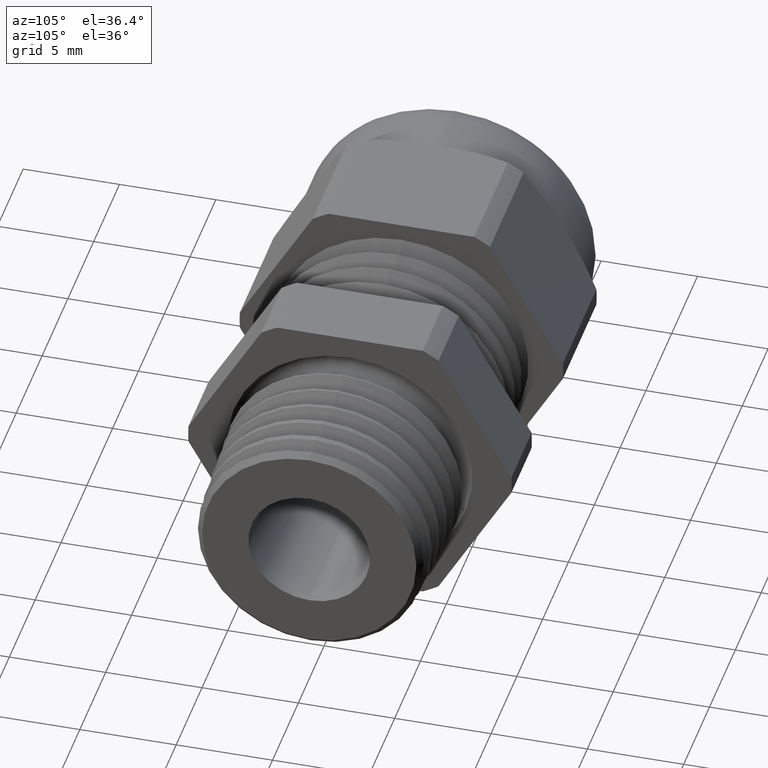
[diagram: clean part render]
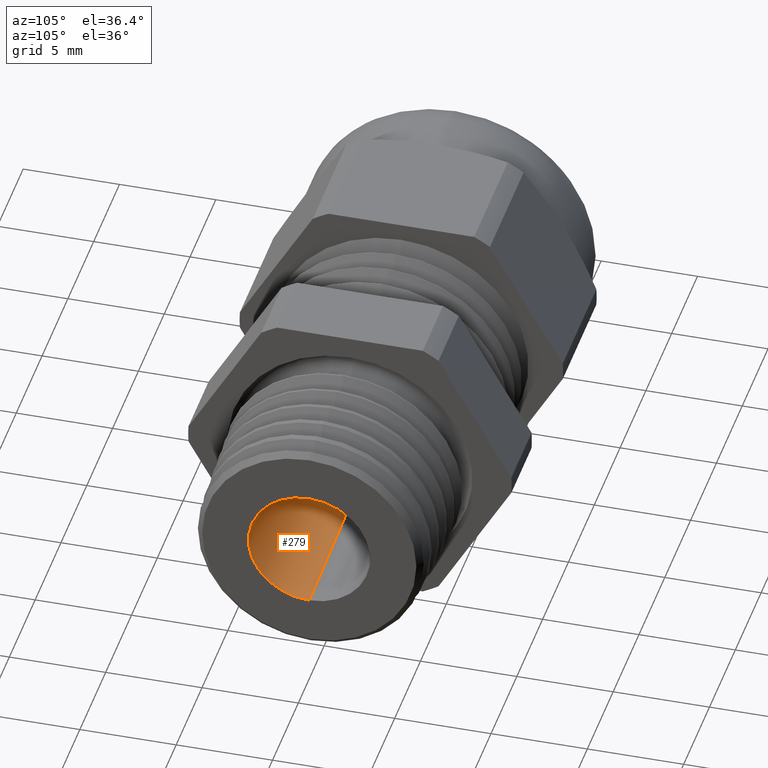
[diagram: same view with one face highlighted and labeled with its STEP entity id]
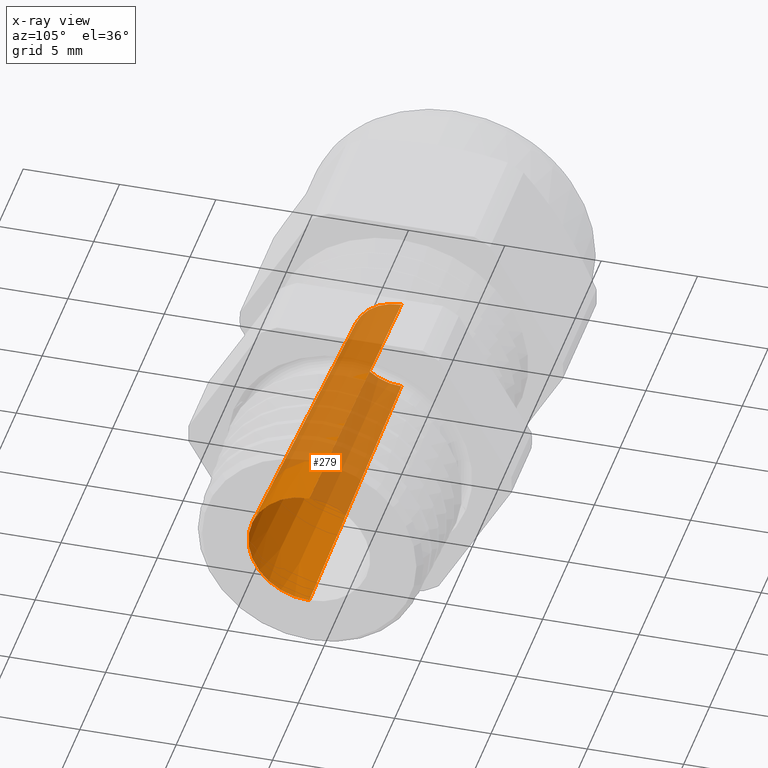
[diagram: x-ray of the same camera — body ghosted, the highlighted face saturated]
A machine part, auxiliary view. The second image highlights one B-rep face of the part: STEP entity #279.
The next image is the same camera in x-ray: the body ghosted, the highlighted face saturated — about 57% of this face is hidden behind the body in this view.
In plain terms, the highlighted conical surface has half-angle 2 deg.
Its self-contained STEP definition (entity closure, byte-faithful):
#279 = ADVANCED_FACE ( 'NONE', ( #1707 ), #1704, .F. ) ;
#280 = EDGE_LOOP ( 'NONE', ( #281, #282, #299, #302 ) ) ;
#281 = ORIENTED_EDGE ( 'NONE', *, *, #349, .T. ) ;
#282 = ORIENTED_EDGE ( 'NONE', *, *, #297, .T. ) ;
#285 = EDGE_CURVE ( 'NONE', #350, #301, #1633, .T. ) ;
#297 = EDGE_CURVE ( 'NONE', #351, #298, #1961, .T. ) ;
#298 = VERTEX_POINT ( 'NONE', #1957 ) ;
#299 = ORIENTED_EDGE ( 'NONE', *, *, #300, .F. ) ;
#300 = EDGE_CURVE ( 'NONE', #301, #298, #1956, .T. ) ;
#301 = VERTEX_POINT ( 'NONE', #1951 ) ;
#302 = ORIENTED_EDGE ( 'NONE', *, *, #285, .F. ) ;
#349 = EDGE_CURVE ( 'NONE', #350, #351, #1976, .T. ) ;
#350 = VERTEX_POINT ( 'NONE', #1930 ) ;
#351 = VERTEX_POINT ( 'NONE', #1929 ) ;
#1630 = DIRECTION ( 'NONE',  ( 0.9993908270190957600, 0.0000000000000000000, -0.03489949670250168400 ) ) ;
#1631 = VECTOR ( 'NONE', #1630, 39.37007874015748900 ) ;
#1632 = CARTESIAN_POINT ( 'NONE',  ( -0.3920833333333332800, 0.0000000000000000000, -0.09999999999999999200 ) ) ;
#1633 = LINE ( 'NONE', #1632, #1631 ) ;
#1701 = DIRECTION ( 'NONE',  ( 0.0000000000000000000, 0.0000000000000000000, -1.000000000000000000 ) ) ;
#1702 = DIRECTION ( 'NONE',  ( 1.000000000000000000, 0.0000000000000000000, 0.0000000000000000000 ) ) ;
#1703 = AXIS2_PLACEMENT_3D ( 'NONE', #1706, #1702, #1701 ) ;
#1704 = CONICAL_SURFACE ( 'NONE', #1703, 0.09999999999999999200, 0.03490658503988730600 ) ;
#1706 = CARTESIAN_POINT ( 'NONE',  ( -0.3920833333333332800, 0.0000000000000000000, 0.0000000000000000000 ) ) ;
#1707 = FACE_OUTER_BOUND ( 'NONE', #280, .T. ) ;
#1929 = CARTESIAN_POINT ( 'NONE',  ( -0.3920833333333332800, 1.374771904273160300E-017, 0.09999999999999999200 ) ) ;
#1930 = CARTESIAN_POINT ( 'NONE',  ( -0.3920833333333332800, 0.0000000000000000000, -0.09999999999999999200 ) ) ;
#1931 = DIRECTION ( 'NONE',  ( 0.0000000000000000000, 0.0000000000000000000, 1.000000000000000000 ) ) ;
#1932 = DIRECTION ( 'NONE',  ( -1.000000000000000000, 0.0000000000000000000, 0.0000000000000000000 ) ) ;
#1951 = CARTESIAN_POINT ( 'NONE',  ( 0.3100000000000000000, 0.0000000000000000000, -0.1245172902473317100 ) ) ;
#1952 = DIRECTION ( 'NONE',  ( 0.0000000000000000000, 0.0000000000000000000, 1.000000000000000000 ) ) ;
#1953 = DIRECTION ( 'NONE',  ( -1.000000000000000000, 0.0000000000000000000, 0.0000000000000000000 ) ) ;
#1954 = CARTESIAN_POINT ( 'NONE',  ( 0.3100000000000000000, 0.0000000000000000000, 0.0000000000000000000 ) ) ;
#1955 = AXIS2_PLACEMENT_3D ( 'NONE', #1954, #1953, #1952 ) ;
#1956 = CIRCLE ( 'NONE', #1955, 0.1245172902473317100 ) ;
#1957 = CARTESIAN_POINT ( 'NONE',  ( 0.3100000000000000000, 1.524897009398967300E-017, 0.1245172902473317100 ) ) ;
#1958 = DIRECTION ( 'NONE',  ( 0.9993908270190957600, 4.273955692857229600E-018, 0.03489949670250168400 ) ) ;
#1959 = VECTOR ( 'NONE', #1958, 39.37007874015748900 ) ;
#1960 = CARTESIAN_POINT ( 'NONE',  ( -0.3920833333333332800, 1.224646799147353100E-017, 0.09999999999999999200 ) ) ;
#1961 = LINE ( 'NONE', #1960, #1959 ) ;
#1975 = AXIS2_PLACEMENT_3D ( 'NONE', #1981, #1932, #1931 ) ;
#1976 = CIRCLE ( 'NONE', #1975, 0.09999999999999999200 ) ;
#1981 = CARTESIAN_POINT ( 'NONE',  ( -0.3920833333333332800, 0.0000000000000000000, 0.0000000000000000000 ) ) ;